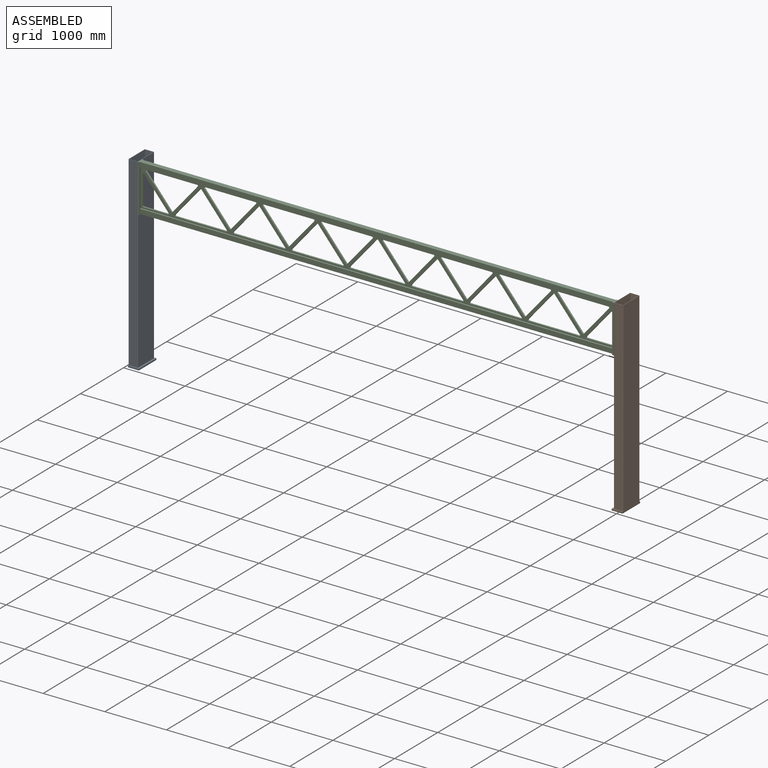
[diagram: assembled view]
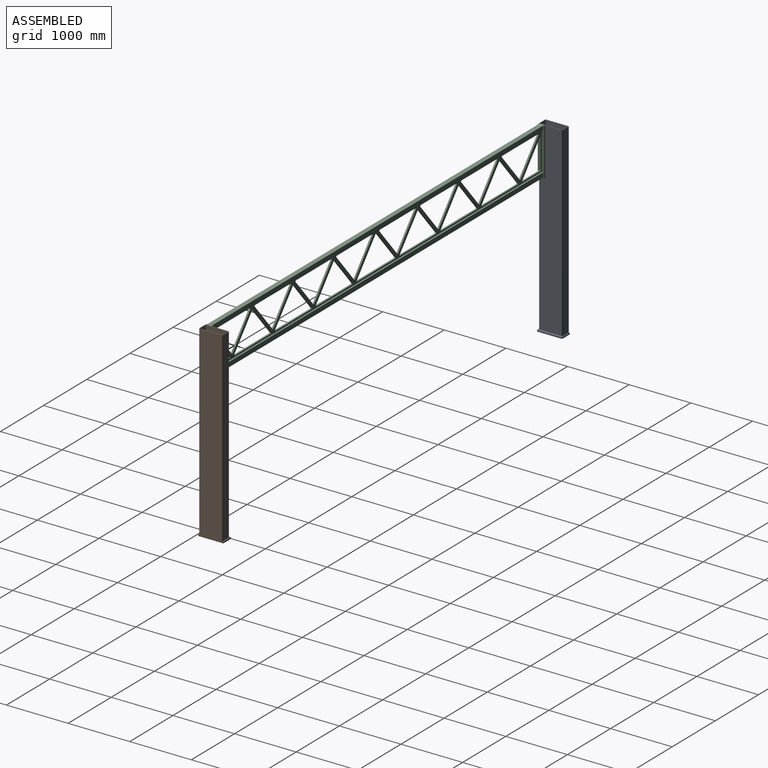
[diagram: assembled view, second angle]
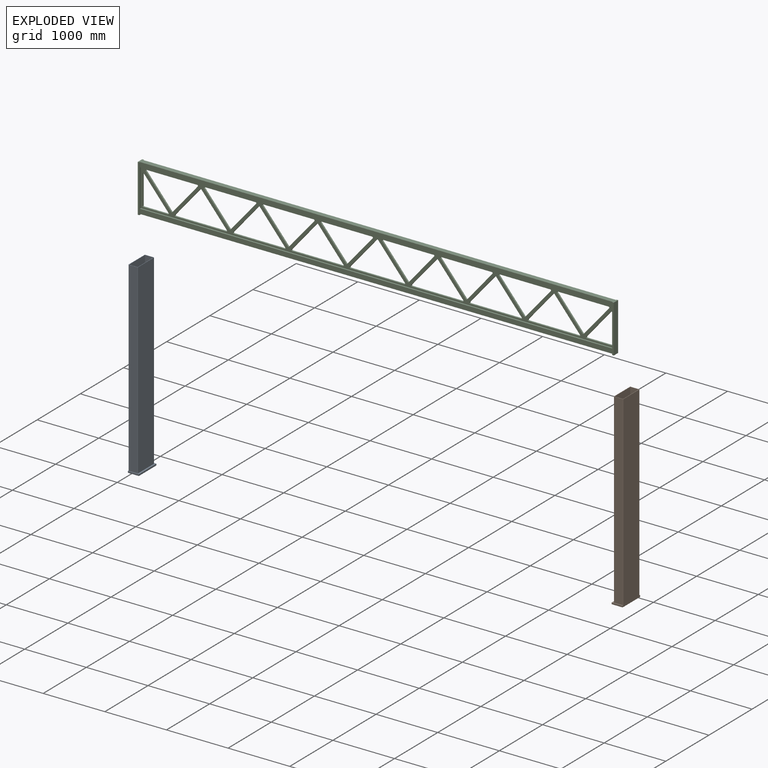
[diagram: exploded view]
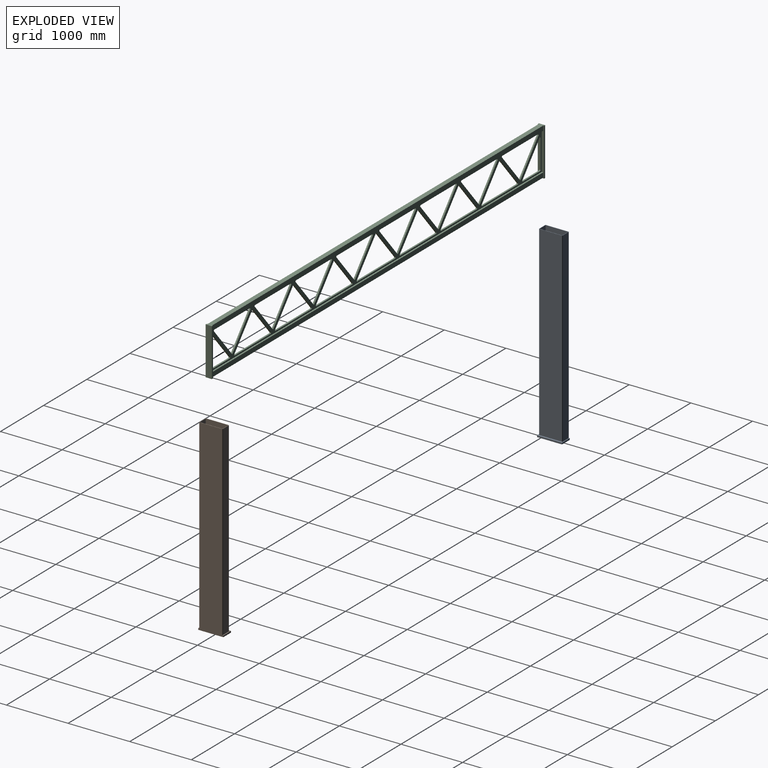
[diagram: exploded view, second angle]
ASSEMBLY  parts=3 mates=2
PART A: 19 faces, bbox 406.4x177.8x3048 mm
  f0: cylinder r=6.35mm len=3022.6mm, axis (0,0,-1), area 30149.1mm2, adj f1,f11,f12,f13
  f1: plane 3048x406.4mm, normal (0,-1,0), area 1123546.1mm2, adj f0,f2,f12,f13,f14,f16,f17
  f2: cylinder r=6.35mm len=3022.6mm, axis (0,0,-1), area 30149.1mm2, adj f1,f3,f12,f13
  f3: plane 3022.6x139.7mm, normal (1,0,0), area 422257.2mm2, adj f2,f4,f12,f13
  f4: cylinder r=6.35mm len=3022.6mm, axis (0,0,-1), area 30149.1mm2, adj f3,f5,f12,f13
  f5: plane 3022.6x368.3mm, normal (0,1,0), area 1113223.6mm2, adj f4,f6,f12,f13
  f6: cylinder r=6.35mm len=3022.6mm, axis (0,0,-1), area 30149.1mm2, adj f5,f11,f12,f13
  f7: plane 3022.6x139.7mm, normal (1,0,0), area 422257.2mm2, adj f8,f10,f12,f18
  f8: plane 3022.6x368.3mm, normal (0,-1,0), area 1113223.6mm2, adj f7,f9,f12,f18
  f9: plane 3022.6x139.7mm, normal (-1,0,0), area 422257.2mm2, adj f8,f10,f12,f18
  f10: plane 3022.6x368.3mm, normal (0,1,0), area 1113223.6mm2, adj f7,f9,f12,f18
  f11: plane 3022.6x139.7mm, normal (-1,0,0), area 422257.2mm2, adj f0,f6,f12,f13
  f12: plane 381x152.4mm, normal (0,0,1), area 6578.3mm2, adj f0,f1,f2,f3,f4,f5,f6,f7
  f13: plane 406.4x177.8mm, normal (0,0,1), area 14228.1mm2, adj f0,f1,f2,f3,f4,f5,f6,f11
  f14: plane 406.4x177.8mm, normal (0,0,-1), area 72257.9mm2, adj f1,f15,f16,f17
  f15: plane 406.4x25.4mm, normal (0,1,0), area 10322.6mm2, adj f13,f14,f16,f17
  f16: plane 177.8x25.4mm, normal (1,0,0), area 4516.1mm2, adj f1,f13,f14,f15
  f17: plane 177.8x25.4mm, normal (-1,0,0), area 4516.1mm2, adj f1,f13,f14,f15
  f18: plane 368.3x139.7mm, normal (0,0,1), area 51451.5mm2, adj f7,f8,f9,f10
PART B: 19 faces, bbox 406.4x177.8x3048 mm
  f0: cylinder r=6.35mm len=3022.6mm, axis (0,0,-1), area 30149.1mm2, adj f1,f11,f12,f13
  f1: plane 3048x406.4mm, normal (0,1,0), area 1123546.1mm2, adj f0,f2,f12,f13,f14,f16,f17
  f2: cylinder r=6.35mm len=3022.6mm, axis (0,0,-1), area 30149.1mm2, adj f1,f3,f12,f13
  f3: plane 3022.6x139.7mm, normal (1,0,0), area 422257.2mm2, adj f2,f4,f12,f13
  f4: cylinder r=6.35mm len=3022.6mm, axis (0,0,-1), area 30149.1mm2, adj f3,f5,f12,f13
  f5: plane 3022.6x368.3mm, normal (0,-1,0), area 1113223.6mm2, adj f4,f6,f12,f13
  f6: cylinder r=6.35mm len=3022.6mm, axis (0,0,-1), area 30149.1mm2, adj f5,f11,f12,f13
  f7: plane 3022.6x139.7mm, normal (1,0,0), area 422257.2mm2, adj f8,f10,f12,f18
  f8: plane 3022.6x368.3mm, normal (0,1,0), area 1113223.6mm2, adj f7,f9,f12,f18
  f9: plane 3022.6x139.7mm, normal (-1,0,0), area 422257.2mm2, adj f8,f10,f12,f18
  f10: plane 3022.6x368.3mm, normal (0,-1,0), area 1113223.6mm2, adj f7,f9,f12,f18
  f11: plane 3022.6x139.7mm, normal (-1,0,0), area 422257.2mm2, adj f0,f6,f12,f13
  f12: plane 381x152.4mm, normal (0,0,1), area 6578.3mm2, adj f0,f1,f2,f3,f4,f5,f6,f7
  f13: plane 406.4x177.8mm, normal (0,0,1), area 14228.1mm2, adj f0,f1,f2,f3,f4,f5,f6,f11
  f14: plane 406.4x177.8mm, normal (0,0,-1), area 72257.9mm2, adj f1,f15,f16,f17
  f15: plane 406.4x25.4mm, normal (0,-1,0), area 10322.6mm2, adj f13,f14,f16,f17
  f16: plane 177.8x25.4mm, normal (1,0,0), area 4516.1mm2, adj f1,f13,f14,f15
  f17: plane 177.8x25.4mm, normal (-1,0,0), area 4516.1mm2, adj f1,f13,f14,f15
  f18: plane 368.3x139.7mm, normal (0,0,1), area 51451.5mm2, adj f7,f8,f9,f10
PART C: 124 faces, bbox 101.6x7721.6x774.7 mm
  f0: plane 7670.8x609.6mm, normal (-1,0,0), area 1000044.2mm2, adj f6,f8,f16,f17,f18,f19,f20,f21
  f1: plane 7670.8x609.6mm, normal (1,0,0), area 1000044.2mm2, adj f6,f11,f12,f17,f18,f19,f20,f21
  f2: plane 774.7x25.4mm, normal (-1,0,0), area 19677.4mm2, adj f3,f5,f6,f7
  f3: plane 7721.6x101.6mm, normal (0,0,1), area 589676.2mm2, adj f2,f4,f6,f7,f9,f10,f68,f69
  f4: plane 774.7x25.4mm, normal (1,0,0), area 19677.4mm2, adj f3,f5,f6,f7
  f5: plane 101.6x25.4mm, normal (0,0,-1), area 2580.6mm2, adj f2,f4,f6,f7
  f6: plane 774.7x101.6mm, normal (0,1,0), area 51612.8mm2, adj f0,f1,f2,f3,f4,f5,f8,f9
  f7: plane 774.7x101.6mm, normal (0,-1,0), area 78709.5mm2, adj f2,f3,f4,f5
  f8: plane 7670.8x25.4mm, normal (0,0,-1), area 194838.3mm2, adj f0,f6,f9,f71
  f9: plane 7670.8x76.2mm, normal (-1,0,0), area 584515mm2, adj f3,f6,f8,f71
  f10: plane 7670.8x76.2mm, normal (1,0,0), area 584515mm2, adj f3,f6,f11,f71
  f11: plane 7670.8x25.4mm, normal (0,0,-1), area 194838.3mm2, adj f1,f6,f10,f71
  f12: plane 7670.8x25.4mm, normal (0,0,1), area 194838.3mm2, adj f1,f6,f13,f71
  f13: plane 7670.8x76.2mm, normal (1,0,0), area 584515mm2, adj f6,f12,f14,f71
  f14: plane 7670.8x76.2mm, normal (0,0,-1), area 584515mm2, adj f6,f13,f15,f71
  f15: plane 7670.8x76.2mm, normal (-1,0,0), area 584515mm2, adj f6,f14,f16,f71
  f16: plane 7670.8x25.4mm, normal (0,0,1), area 194838.3mm2, adj f0,f6,f15,f71
  f17: plane 399.7x25.4mm, normal (0,0,1), area 10152.5mm2, adj f0,f1,f65,f66
  f18: plane 472.13x399.7mm, normal (0,-0.76,-0.65), area 15712.6mm2, adj f0,f1,f65,f67
  f19: plane 472.13x25.4mm, normal (0,1,0), area 11992.2mm2, adj f0,f1,f66,f67
  f20: plane 487.13x412.4mm, normal (0,0.76,-0.65), area 16211.8mm2, adj f0,f1,f47,f48
  f21: plane 824.81x25.4mm, normal (0,0,1), area 20950.1mm2, adj f0,f1,f47,f49
  f22: plane 487.13x412.4mm, normal (0,-0.76,-0.65), area 16211.8mm2, adj f0,f1,f48,f49
  f23: plane 487.13x412.4mm, normal (0,0.76,0.65), area 16211.8mm2, adj f0,f1,f50,f51
  f24: plane 487.13x412.4mm, normal (0,-0.76,0.65), area 16211.8mm2, adj f0,f1,f50,f52
  f25: plane 824.81x25.4mm, normal (0,0,-1), area 20950.1mm2, adj f0,f1,f51,f52
  f26: plane 824.81x25.4mm, normal (0,0,-1), area 20950.1mm2, adj f0,f1,f43,f44
  f27: plane 487.13x412.4mm, normal (0,0.76,0.65), area 16211.8mm2, adj f0,f1,f43,f45
  f28: plane 487.13x412.4mm, normal (0,-0.76,0.65), area 16211.8mm2, adj f0,f1,f44,f45
  f29: plane 487.13x412.4mm, normal (0,-0.76,-0.65), area 16211.8mm2, adj f0,f1,f59,f60
  f30: plane 487.13x412.4mm, normal (0,0.76,-0.65), area 16211.8mm2, adj f0,f1,f59,f61
  f31: plane 824.81x25.4mm, normal (0,0,1), area 20950.1mm2, adj f0,f1,f60,f61
  f32: plane 824.81x25.4mm, normal (0,0,-1), area 20950.1mm2, adj f0,f1,f62,f63
  f33: plane 487.13x412.4mm, normal (0,0.76,0.65), area 16211.8mm2, adj f0,f1,f62,f64
  f34: plane 487.13x412.4mm, normal (0,-0.76,0.65), area 16211.8mm2, adj f0,f1,f63,f64
  f35: plane 487.13x412.4mm, normal (0,-0.76,-0.65), area 16211.8mm2, adj f0,f1,f53,f54
  f36: plane 487.13x412.4mm, normal (0,0.76,-0.65), area 16211.8mm2, adj f0,f1,f53,f55
  f37: plane 824.81x25.4mm, normal (0,0,1), area 20950.1mm2, adj f0,f1,f54,f55
  f38: plane 487.13x412.4mm, normal (0,0.76,0.65), area 16211.8mm2, adj f0,f1,f56,f57
  f39: plane 487.13x412.4mm, normal (0,-0.76,0.65), area 16211.8mm2, adj f0,f1,f56,f58
  f40: plane 824.81x25.4mm, normal (0,0,-1), area 20950.1mm2, adj f0,f1,f57,f58
  f41: plane 517.14x437.8mm, normal (0,0.76,-0.65), area 17210.3mm2, adj f0,f1,f46,f123
  f42: plane 875.61x25.4mm, normal (0,0,1), area 22240.4mm2, adj f0,f1,f46,f101
  f43: cylinder r=12.7mm len=25.4mm, axis (1,0,0), area 733.3mm2, adj f0,f1,f26,f27
  f44: cylinder r=12.7mm len=25.4mm, axis (-1,0,0), area 733.3mm2, adj f0,f1,f26,f28
  f45: cylinder r=12.7mm len=25.4mm, axis (1,0,0), area 560.2mm2, adj f0,f1,f27,f28
  f46: cylinder r=12.7mm len=25.4mm, axis (1,0,0), area 733.3mm2, adj f0,f1,f41,f42
  f47: cylinder r=12.7mm len=25.4mm, axis (1,0,0), area 733.3mm2, adj f0,f1,f20,f21
  f48: cylinder r=12.7mm len=25.4mm, axis (1,0,0), area 560.2mm2, adj f0,f1,f20,f22
  f49: cylinder r=12.7mm len=25.4mm, axis (-1,0,0), area 733.3mm2, adj f0,f1,f21,f22
  f50: cylinder r=12.7mm len=25.4mm, axis (-1,0,0), area 560.2mm2, adj f0,f1,f23,f24
  f51: cylinder r=12.7mm len=25.4mm, axis (-1,0,0), area 733.3mm2, adj f0,f1,f23,f25
  f52: cylinder r=12.7mm len=25.4mm, axis (-1,0,0), area 733.3mm2, adj f0,f1,f24,f25
  f53: cylinder r=12.7mm len=25.4mm, axis (-1,0,0), area 560.2mm2, adj f0,f1,f35,f36
  f54: cylinder r=12.7mm len=25.4mm, axis (-1,0,0), area 733.3mm2, adj f0,f1,f35,f37
  f55: cylinder r=12.7mm len=25.4mm, axis (-1,0,0), area 733.3mm2, adj f0,f1,f36,f37
  f56: cylinder r=12.7mm len=25.4mm, axis (-1,0,0), area 560.2mm2, adj f0,f1,f38,f39
  f57: cylinder r=12.7mm len=25.4mm, axis (-1,0,0), area 733.3mm2, adj f0,f1,f38,f40
  f58: cylinder r=12.7mm len=25.4mm, axis (-1,0,0), area 733.3mm2, adj f0,f1,f39,f40
  f59: cylinder r=12.7mm len=25.4mm, axis (-1,0,0), area 560.2mm2, adj f0,f1,f29,f30
  f60: cylinder r=12.7mm len=25.4mm, axis (-1,0,0), area 733.3mm2, adj f0,f1,f29,f31
  f61: cylinder r=12.7mm len=25.4mm, axis (-1,0,0), area 733.3mm2, adj f0,f1,f30,f31
  f62: cylinder r=12.7mm len=25.4mm, axis (1,0,0), area 733.3mm2, adj f0,f1,f32,f33
  f63: cylinder r=12.7mm len=25.4mm, axis (-1,0,0), area 733.3mm2, adj f0,f1,f32,f34
  f64: cylinder r=12.7mm len=25.4mm, axis (1,0,0), area 560.2mm2, adj f0,f1,f33,f34
  f65: cylinder r=12.7mm len=25.4mm, axis (1,0,0), area 733.3mm2, adj f0,f1,f17,f18
  f66: cylinder r=12.7mm len=25.4mm, axis (1,0,0), area 506.7mm2, adj f0,f1,f17,f19
  f67: cylinder r=12.7mm len=25.4mm, axis (-1,0,0), area 786.8mm2, adj f0,f1,f18,f19
  f68: plane 774.7x25.4mm, normal (-1,0,0), area 19677.4mm2, adj f3,f70,f71,f72
  f69: plane 774.7x25.4mm, normal (1,0,0), area 19677.4mm2, adj f3,f70,f71,f72
  f70: plane 101.6x25.4mm, normal (0,0,-1), area 2580.6mm2, adj f68,f69,f71,f72
  f71: plane 774.7x101.6mm, normal (0,-1,0), area 51612.8mm2, adj f0,f1,f3,f8,f9,f10,f11,f12
  f72: plane 774.7x101.6mm, normal (0,1,0), area 78709.5mm2, adj f3,f68,f69,f70
  f73: plane 399.7x25.4mm, normal (0,0,1), area 10152.5mm2, adj f0,f1,f120,f121
  f74: plane 472.13x399.7mm, normal (0,0.76,-0.65), area 15712.6mm2, adj f0,f1,f120,f122
  f75: plane 472.13x25.4mm, normal (0,-1,0), area 11992.2mm2, adj f0,f1,f121,f122
  f76: plane 487.13x412.4mm, normal (0,-0.76,-0.65), area 16211.8mm2, adj f0,f1,f102,f103
  f77: plane 824.81x25.4mm, normal (0,0,1), area 20950.1mm2, adj f0,f1,f102,f104
  f78: plane 487.13x412.4mm, normal (0,0.76,-0.65), area 16211.8mm2, adj f0,f1,f103,f104
  f79: plane 487.13x412.4mm, normal (0,-0.76,0.65), area 16211.8mm2, adj f0,f1,f105,f106
  f80: plane 487.13x412.4mm, normal (0,0.76,0.65), area 16211.8mm2, adj f0,f1,f105,f107
  f81: plane 824.81x25.4mm, normal (0,0,-1), area 20950.1mm2, adj f0,f1,f106,f107
  f82: plane 824.81x25.4mm, normal (0,0,-1), area 20950.1mm2, adj f0,f1,f98,f99
  f83: plane 487.13x412.4mm, normal (0,-0.76,0.65), area 16211.8mm2, adj f0,f1,f98,f100
  f84: plane 487.13x412.4mm, normal (0,0.76,0.65), area 16211.8mm2, adj f0,f1,f99,f100
  f85: plane 487.13x412.4mm, normal (0,0.76,-0.65), area 16211.8mm2, adj f0,f1,f114,f115
  f86: plane 487.13x412.4mm, normal (0,-0.76,-0.65), area 16211.8mm2, adj f0,f1,f114,f116
  f87: plane 824.81x25.4mm, normal (0,0,1), area 20950.1mm2, adj f0,f1,f115,f116
  f88: plane 824.81x25.4mm, normal (0,0,-1), area 20950.1mm2, adj f0,f1,f117,f118
  f89: plane 487.13x412.4mm, normal (0,-0.76,0.65), area 16211.8mm2, adj f0,f1,f117,f119
  f90: plane 487.13x412.4mm, normal (0,0.76,0.65), area 16211.8mm2, adj f0,f1,f118,f119
  f91: plane 487.13x412.4mm, normal (0,0.76,-0.65), area 16211.8mm2, adj f0,f1,f108,f109
  f92: plane 487.13x412.4mm, normal (0,-0.76,-0.65), area 16211.8mm2, adj f0,f1,f108,f110
  f93: plane 824.81x25.4mm, normal (0,0,1), area 20950.1mm2, adj f0,f1,f109,f110
  f94: plane 487.13x412.4mm, normal (0,-0.76,0.65), area 16211.8mm2, adj f0,f1,f111,f112
  f95: plane 487.13x412.4mm, normal (0,0.76,0.65), area 16211.8mm2, adj f0,f1,f111,f113
  f96: plane 824.81x25.4mm, normal (0,0,-1), area 20950.1mm2, adj f0,f1,f112,f113
  f97: plane 517.14x437.8mm, normal (0,-0.76,-0.65), area 17210.3mm2, adj f0,f1,f101,f123
  f98: cylinder r=12.7mm len=25.4mm, axis (1,0,0), area 733.3mm2, adj f0,f1,f82,f83
  f99: cylinder r=12.7mm len=25.4mm, axis (-1,0,0), area 733.3mm2, adj f0,f1,f82,f84
  f100: cylinder r=12.7mm len=25.4mm, axis (1,0,0), area 560.2mm2, adj f0,f1,f83,f84
  f101: cylinder r=12.7mm len=25.4mm, axis (1,0,0), area 733.3mm2, adj f0,f1,f42,f97
  f102: cylinder r=12.7mm len=25.4mm, axis (1,0,0), area 733.3mm2, adj f0,f1,f76,f77
  f103: cylinder r=12.7mm len=25.4mm, axis (1,0,0), area 560.2mm2, adj f0,f1,f76,f78
  f104: cylinder r=12.7mm len=25.4mm, axis (-1,0,0), area 733.3mm2, adj f0,f1,f77,f78
  f105: cylinder r=12.7mm len=25.4mm, axis (-1,0,0), area 560.2mm2, adj f0,f1,f79,f80
  f106: cylinder r=12.7mm len=25.4mm, axis (-1,0,0), area 733.3mm2, adj f0,f1,f79,f81
  f107: cylinder r=12.7mm len=25.4mm, axis (-1,0,0), area 733.3mm2, adj f0,f1,f80,f81
  f108: cylinder r=12.7mm len=25.4mm, axis (-1,0,0), area 560.2mm2, adj f0,f1,f91,f92
  f109: cylinder r=12.7mm len=25.4mm, axis (-1,0,0), area 733.3mm2, adj f0,f1,f91,f93
  f110: cylinder r=12.7mm len=25.4mm, axis (-1,0,0), area 733.3mm2, adj f0,f1,f92,f93
  f111: cylinder r=12.7mm len=25.4mm, axis (-1,0,0), area 560.2mm2, adj f0,f1,f94,f95
  f112: cylinder r=12.7mm len=25.4mm, axis (-1,0,0), area 733.3mm2, adj f0,f1,f94,f96
  f113: cylinder r=12.7mm len=25.4mm, axis (-1,0,0), area 733.3mm2, adj f0,f1,f95,f96
  f114: cylinder r=12.7mm len=25.4mm, axis (-1,0,0), area 560.2mm2, adj f0,f1,f85,f86
  f115: cylinder r=12.7mm len=25.4mm, axis (-1,0,0), area 733.3mm2, adj f0,f1,f85,f87
  f116: cylinder r=12.7mm len=25.4mm, axis (-1,0,0), area 733.3mm2, adj f0,f1,f86,f87
  f117: cylinder r=12.7mm len=25.4mm, axis (1,0,0), area 733.3mm2, adj f0,f1,f88,f89
  f118: cylinder r=12.7mm len=25.4mm, axis (-1,0,0), area 733.3mm2, adj f0,f1,f88,f90
  f119: cylinder r=12.7mm len=25.4mm, axis (1,0,0), area 560.2mm2, adj f0,f1,f89,f90
  f120: cylinder r=12.7mm len=25.4mm, axis (1,0,0), area 733.3mm2, adj f0,f1,f73,f74
  f121: cylinder r=12.7mm len=25.4mm, axis (1,0,0), area 506.7mm2, adj f0,f1,f73,f75
  f122: cylinder r=12.7mm len=25.4mm, axis (-1,0,0), area 786.8mm2, adj f0,f1,f74,f75
  f123: cylinder r=12.7mm len=25.4mm, axis (-1,0,0), area 560.2mm2, adj f0,f1,f41,f97
PLACE A rot(axis=(0,0,-1),90deg) t=(101.6,495.3,25.4)mm
PLACE B rot(axis=(0,0,-1),90deg) t=(101.6,495.3,25.4)mm
PLACE C rot(axis=(0,0,-1),90deg) t=(101.6,355.6,25.4)mm
MATE fastened C.f3 <-> A.f12  axis (0,0,1) through (254,114.3,3048)mm
MATE fastened C.f3 <-> B.f12  axis (0,0,1) through (7975.6,114.3,3048)mm
